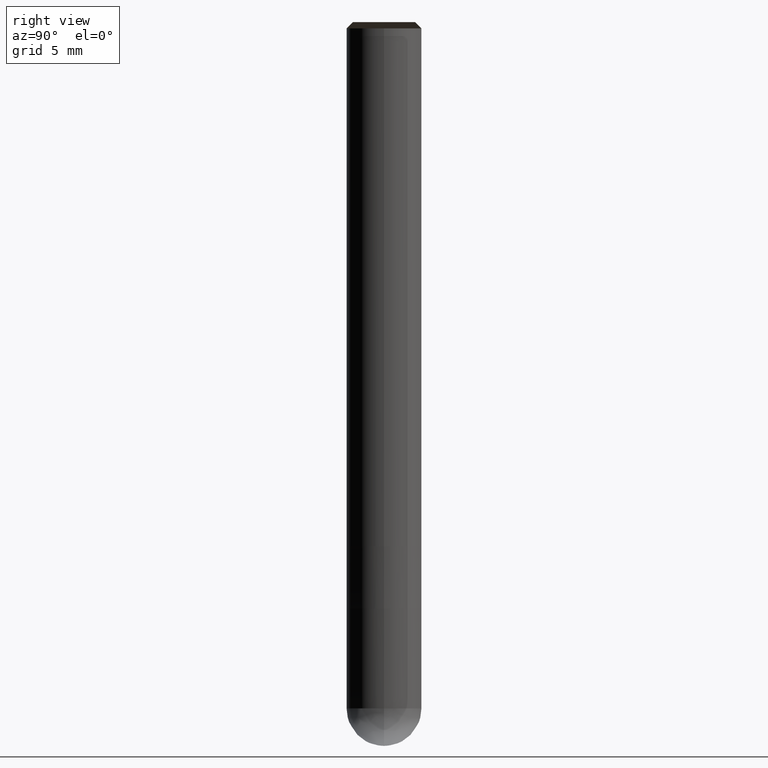
[diagram: clean part render]
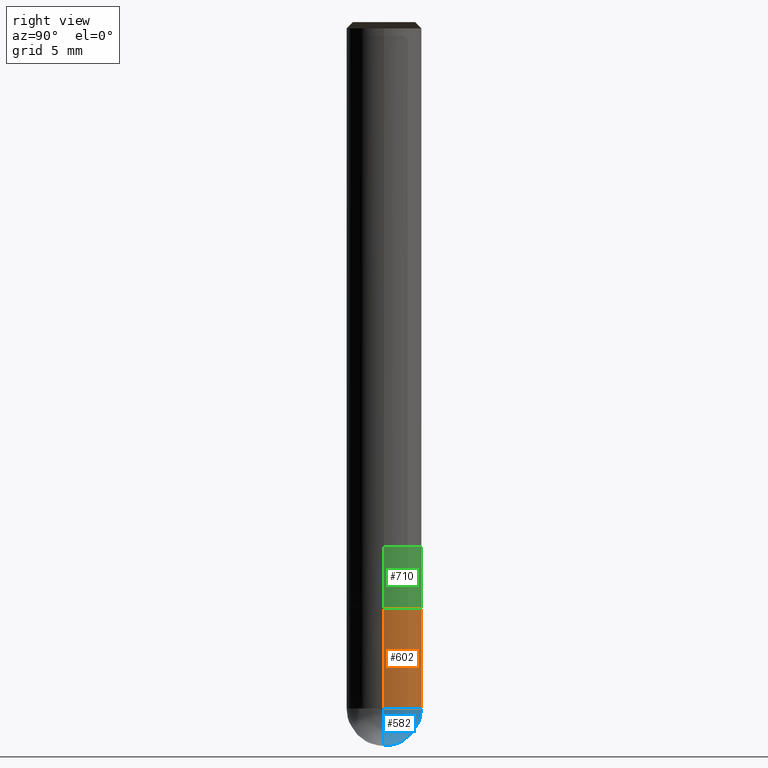
[diagram: same view with three faces highlighted in distinct colors, each labeled with its STEP entity id]
A machine part, right view with three faces highlighted in distinct colors.
Their STEP definitions:

[orange] entity #602 — the highlighted face is a freeform B-spline surface patch.
#516=CARTESIAN_POINT('',(3.0,0.0,-13.0));
#517=CARTESIAN_POINT('',(3.0,3.0,-13.0));
#518=CARTESIAN_POINT('',(0.0,3.0,-13.0));
#519=CARTESIAN_POINT('',(-3.0,3.0,-13.0));
#520=CARTESIAN_POINT('',(-3.0,0.0,-13.0));
#521=CARTESIAN_POINT('',(3.0,0.0,-5.0));
#522=CARTESIAN_POINT('',(3.0,3.0,-5.0));
#523=CARTESIAN_POINT('',(0.0,3.0,-5.0));
#524=CARTESIAN_POINT('',(-3.0,3.0,-5.0));
#525=CARTESIAN_POINT('',(-3.0,0.0,-5.0));
#583=(
BOUNDED_SURFACE()
B_SPLINE_SURFACE(1,2,(
(#516,#517,#518,#519,#520),
(#521,#522,#523,#524,#525)
), .UNSPECIFIED.,.F.,.F.,.F.)
B_SPLINE_SURFACE_WITH_KNOTS((2,2),(3,2,3),(
0.0,1.0),(
0.0,0.5,1.0), .UNSPECIFIED.)
GEOMETRIC_REPRESENTATION_ITEM()
RATIONAL_B_SPLINE_SURFACE(((1.0,0.707106781187,1.0,0.707106781187,1.0),
(1.0,0.707106781187,1.0,0.707106781187,1.0)
))
REPRESENTATION_ITEM('')
SURFACE()
);
#584=(
BOUNDED_CURVE()
B_SPLINE_CURVE(2,(#520,#519,#518,#517,#516),.UNSPECIFIED.,.F.,.F.)
B_SPLINE_CURVE_WITH_KNOTS((3,2,3),
(0.0,0.5,1.0),.UNSPECIFIED.)
CURVE()
GEOMETRIC_REPRESENTATION_ITEM()
RATIONAL_B_SPLINE_CURVE((1.0,0.707106781187,1.0,0.707106781187,1.0))
REPRESENTATION_ITEM('')
);
#585=(
BOUNDED_CURVE()
B_SPLINE_CURVE(1,(#516,#521),.UNSPECIFIED.,.F.,.F.)
B_SPLINE_CURVE_WITH_KNOTS((2,2),
(0.0,1.0),.UNSPECIFIED.)
CURVE()
GEOMETRIC_REPRESENTATION_ITEM()
RATIONAL_B_SPLINE_CURVE((1.0,1.0))
REPRESENTATION_ITEM('')
);
#586=(
BOUNDED_CURVE()
B_SPLINE_CURVE(2,(#521,#522,#523,#524,#525),.UNSPECIFIED.,.F.,.F.)
B_SPLINE_CURVE_WITH_KNOTS((3,2,3),
(0.0,0.5,1.0),.UNSPECIFIED.)
CURVE()
GEOMETRIC_REPRESENTATION_ITEM()
RATIONAL_B_SPLINE_CURVE((1.0,0.707106781187,1.0,0.707106781187,1.0))
REPRESENTATION_ITEM('')
);
#587=(
BOUNDED_CURVE()
B_SPLINE_CURVE(1,(#525,#520),.UNSPECIFIED.,.F.,.F.)
B_SPLINE_CURVE_WITH_KNOTS((2,2),
(0.0,1.0),.UNSPECIFIED.)
CURVE()
GEOMETRIC_REPRESENTATION_ITEM()
RATIONAL_B_SPLINE_CURVE((1.0,1.0))
REPRESENTATION_ITEM('')
);
#588=VERTEX_POINT('',#516);
#589=VERTEX_POINT('',#520);
#590=VERTEX_POINT('',#521);
#591=VERTEX_POINT('',#525);
#592=EDGE_CURVE('',#589,#588,#584,.T.);
#593=EDGE_CURVE('',#588,#590,#585,.T.);
#594=EDGE_CURVE('',#590,#591,#586,.T.);
#595=EDGE_CURVE('',#591,#589,#587,.T.);
#596=ORIENTED_EDGE('',*,*,#592,.T.);
#597=ORIENTED_EDGE('',*,*,#593,.T.);
#598=ORIENTED_EDGE('',*,*,#594,.T.);
#599=ORIENTED_EDGE('',*,*,#595,.T.);
#600=EDGE_LOOP('',(#596,#597,#598,#599));
#601=FACE_OUTER_BOUND('',#600,.T.);
#602=ADVANCED_FACE('',(#601),#583,.T.);

[blue] entity #582 — the highlighted face is a freeform B-spline surface patch.
#510=CARTESIAN_POINT('',(0.0,0.0,-16.0));
#511=CARTESIAN_POINT('',(3.0,0.0,-16.0));
#512=CARTESIAN_POINT('',(3.0,3.0,-16.0));
#513=CARTESIAN_POINT('',(0.0,3.0,-16.0));
#514=CARTESIAN_POINT('',(-3.0,3.0,-16.0));
#515=CARTESIAN_POINT('',(-3.0,0.0,-16.0));
#516=CARTESIAN_POINT('',(3.0,0.0,-13.0));
#517=CARTESIAN_POINT('',(3.0,3.0,-13.0));
#518=CARTESIAN_POINT('',(0.0,3.0,-13.0));
#519=CARTESIAN_POINT('',(-3.0,3.0,-13.0));
#520=CARTESIAN_POINT('',(-3.0,0.0,-13.0));
#567=(
BOUNDED_SURFACE()
B_SPLINE_SURFACE(2,2,(
(#510,#510,#510,#510,#510),
(#511,#512,#513,#514,#515),
(#516,#517,#518,#519,#520)
), .UNSPECIFIED.,.F.,.F.,.F.)
B_SPLINE_SURFACE_WITH_KNOTS((3,3),(3,2,3),(
0.0,1.0),(
0.0,0.5,1.0), .UNSPECIFIED.)
GEOMETRIC_REPRESENTATION_ITEM()
RATIONAL_B_SPLINE_SURFACE(((1.0,0.707106781187,1.0,0.707106781187,1.0),
(0.707106781187,0.5,0.707106781187,0.5,0.707106781187),
(1.0,0.707106781187,1.0,0.707106781187,1.0)
))
REPRESENTATION_ITEM('')
SURFACE()
);
#568=(
BOUNDED_CURVE()
B_SPLINE_CURVE(2,(#520,#515,#510),.UNSPECIFIED.,.F.,.F.)
B_SPLINE_CURVE_WITH_KNOTS((3,3),
(0.0,1.0),.UNSPECIFIED.)
CURVE()
GEOMETRIC_REPRESENTATION_ITEM()
RATIONAL_B_SPLINE_CURVE((1.0,0.707106781187,1.0))
REPRESENTATION_ITEM('')
);
#569=(
BOUNDED_CURVE()
B_SPLINE_CURVE(2,(#510,#511,#516),.UNSPECIFIED.,.F.,.F.)
B_SPLINE_CURVE_WITH_KNOTS((3,3),
(0.0,1.0),.UNSPECIFIED.)
CURVE()
GEOMETRIC_REPRESENTATION_ITEM()
RATIONAL_B_SPLINE_CURVE((1.0,0.707106781187,1.0))
REPRESENTATION_ITEM('')
);
#570=(
BOUNDED_CURVE()
B_SPLINE_CURVE(2,(#516,#517,#518,#519,#520),.UNSPECIFIED.,.F.,.F.)
B_SPLINE_CURVE_WITH_KNOTS((3,2,3),
(0.0,0.5,1.0),.UNSPECIFIED.)
CURVE()
GEOMETRIC_REPRESENTATION_ITEM()
RATIONAL_B_SPLINE_CURVE((1.0,0.707106781187,1.0,0.707106781187,1.0))
REPRESENTATION_ITEM('')
);
#571=VERTEX_POINT('',#510);
#572=VERTEX_POINT('',#516);
#573=VERTEX_POINT('',#520);
#574=EDGE_CURVE('',#573,#571,#568,.T.);
#575=EDGE_CURVE('',#571,#572,#569,.T.);
#576=EDGE_CURVE('',#572,#573,#570,.T.);
#577=ORIENTED_EDGE('',*,*,#574,.T.);
#578=ORIENTED_EDGE('',*,*,#575,.T.);
#579=ORIENTED_EDGE('',*,*,#576,.T.);
#580=EDGE_LOOP('',(#577,#578,#579));
#581=FACE_OUTER_BOUND('',#580,.T.);
#582=ADVANCED_FACE('',(#581),#567,.T.);

[green] entity #710 — the highlighted face is a freeform B-spline surface patch.
#521=CARTESIAN_POINT('',(3.0,0.0,-5.0));
#522=CARTESIAN_POINT('',(3.0,3.0,-5.0));
#523=CARTESIAN_POINT('',(0.0,3.0,-5.0));
#524=CARTESIAN_POINT('',(-3.0,3.0,-5.0));
#525=CARTESIAN_POINT('',(-3.0,0.0,-5.0));
#536=CARTESIAN_POINT('',(3.0,0.0,0.0));
#537=CARTESIAN_POINT('',(3.0,3.0,0.0));
#538=CARTESIAN_POINT('',(0.0,3.0,0.0));
#539=CARTESIAN_POINT('',(-3.0,3.0,0.0));
#540=CARTESIAN_POINT('',(-3.0,0.0,0.0));
#691=(
BOUNDED_SURFACE()
B_SPLINE_SURFACE(1,2,(
(#521,#522,#523,#524,#525),
(#536,#537,#538,#539,#540)
), .UNSPECIFIED.,.F.,.F.,.F.)
B_SPLINE_SURFACE_WITH_KNOTS((2,2),(3,2,3),(
0.0,1.0),(
0.0,0.5,1.0), .UNSPECIFIED.)
GEOMETRIC_REPRESENTATION_ITEM()
RATIONAL_B_SPLINE_SURFACE(((1.0,0.707106781187,1.0,0.707106781187,1.0),
(1.0,0.707106781187,1.0,0.707106781187,1.0)
))
REPRESENTATION_ITEM('')
SURFACE()
);
#692=(
BOUNDED_CURVE()
B_SPLINE_CURVE(2,(#525,#524,#523,#522,#521),.UNSPECIFIED.,.F.,.F.)
B_SPLINE_CURVE_WITH_KNOTS((3,2,3),
(0.0,0.5,1.0),.UNSPECIFIED.)
CURVE()
GEOMETRIC_REPRESENTATION_ITEM()
RATIONAL_B_SPLINE_CURVE((1.0,0.707106781187,1.0,0.707106781187,1.0))
REPRESENTATION_ITEM('')
);
#693=(
BOUNDED_CURVE()
B_SPLINE_CURVE(1,(#521,#536),.UNSPECIFIED.,.F.,.F.)
B_SPLINE_CURVE_WITH_KNOTS((2,2),
(0.0,1.0),.UNSPECIFIED.)
CURVE()
GEOMETRIC_REPRESENTATION_ITEM()
RATIONAL_B_SPLINE_CURVE((1.0,1.0))
REPRESENTATION_ITEM('')
);
#694=(
BOUNDED_CURVE()
B_SPLINE_CURVE(2,(#536,#537,#538,#539,#540),.UNSPECIFIED.,.F.,.F.)
B_SPLINE_CURVE_WITH_KNOTS((3,2,3),
(0.0,0.5,1.0),.UNSPECIFIED.)
CURVE()
GEOMETRIC_REPRESENTATION_ITEM()
RATIONAL_B_SPLINE_CURVE((1.0,0.707106781187,1.0,0.707106781187,1.0))
REPRESENTATION_ITEM('')
);
#695=(
BOUNDED_CURVE()
B_SPLINE_CURVE(1,(#540,#525),.UNSPECIFIED.,.F.,.F.)
B_SPLINE_CURVE_WITH_KNOTS((2,2),
(0.0,1.0),.UNSPECIFIED.)
CURVE()
GEOMETRIC_REPRESENTATION_ITEM()
RATIONAL_B_SPLINE_CURVE((1.0,1.0))
REPRESENTATION_ITEM('')
);
#696=VERTEX_POINT('',#521);
#697=VERTEX_POINT('',#525);
#698=VERTEX_POINT('',#536);
#699=VERTEX_POINT('',#540);
#700=EDGE_CURVE('',#697,#696,#692,.T.);
#701=EDGE_CURVE('',#696,#698,#693,.T.);
#702=EDGE_CURVE('',#698,#699,#694,.T.);
#703=EDGE_CURVE('',#699,#697,#695,.T.);
#704=ORIENTED_EDGE('',*,*,#700,.T.);
#705=ORIENTED_EDGE('',*,*,#701,.T.);
#706=ORIENTED_EDGE('',*,*,#702,.T.);
#707=ORIENTED_EDGE('',*,*,#703,.T.);
#708=EDGE_LOOP('',(#704,#705,#706,#707));
#709=FACE_OUTER_BOUND('',#708,.T.);
#710=ADVANCED_FACE('',(#709),#691,.T.);